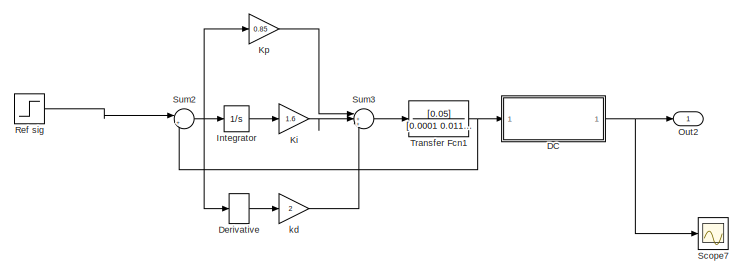
[diagram: root canvas - part 1/3, top left region]
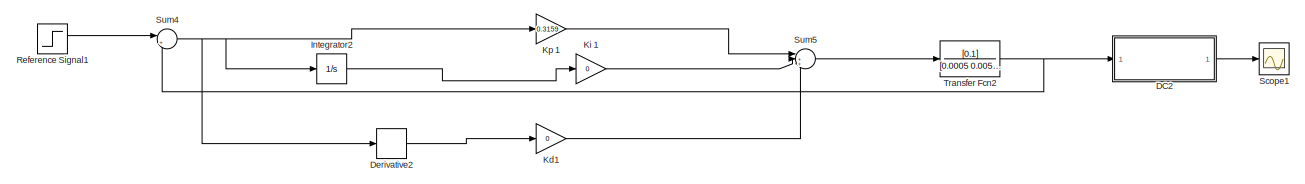
[diagram: root canvas - part 2/3, top right region]
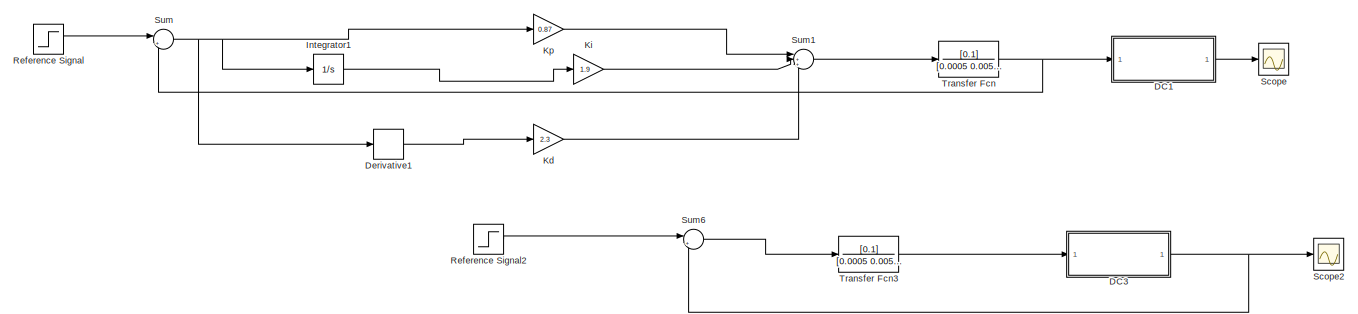
[diagram: root canvas - part 3/3, bottom left region]
MODEL slx_ba53cc7c0554
KIND model
CONFIG AbsTol = 1e-4
CONFIG EnableMultiTasking = off
CONFIG FixedStep = 0.001
CONFIG InitFcn = clear\nclc\n\nJ=0.02;\nb=0.1;\nKe=0.05;\nKt=0.05;\nR=1;\nL=0.01;
CONFIG MaxStep = 0.001
CONFIG MinStep = 1e-8
CONFIG RelTol = 1e-4
CONFIG SampleTimeConstraint = Unconstrained
CONFIG SolverName = ode23t
CONFIG StartTime = 0.0
CONFIG StopTime = 10.0
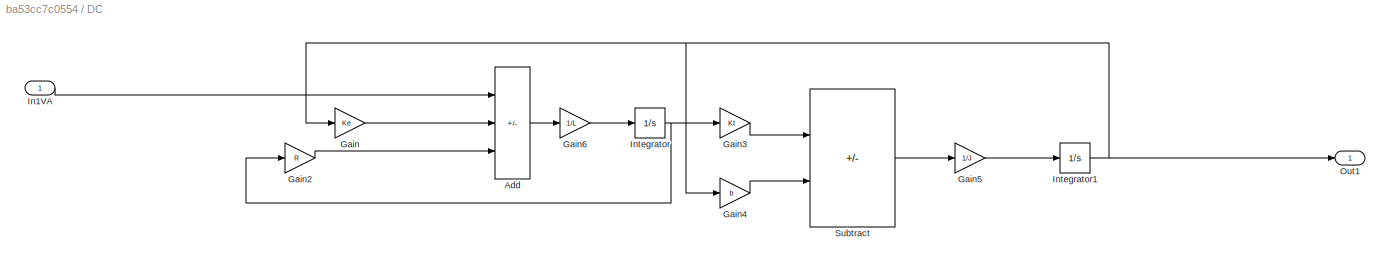
BLOCK [SubSystem] DC
BLOCK [Sum] DC/Add
  IconShape = rectangular
  Inputs = +--
BLOCK [Gain] DC/Gain
  Gain = Ke
BLOCK [Gain] DC/Gain2
  Gain = R
BLOCK [Gain] DC/Gain3
  Gain = Kt
BLOCK [Gain] DC/Gain4
  Gain = b
BLOCK [Gain] DC/Gain5
  Gain = 1/J
BLOCK [Gain] DC/Gain6
  Gain = 1/L
BLOCK [Inport] DC/In1VA
BLOCK [Integrator] DC/Integrator
BLOCK [Integrator] DC/Integrator1
BLOCK [Outport] DC/Out1
BLOCK [Sum] DC/Subtract
  IconShape = rectangular
  Inputs = +-
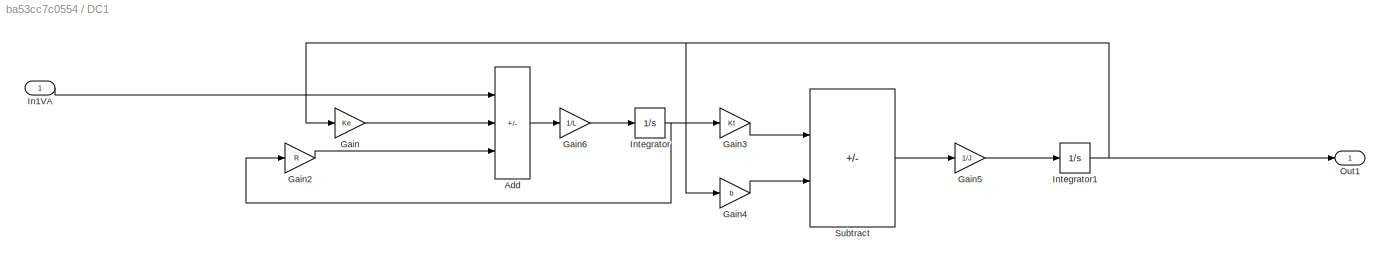
BLOCK [SubSystem] DC1
BLOCK [Sum] DC1/Add
  IconShape = rectangular
  Inputs = +--
BLOCK [Gain] DC1/Gain
  Gain = Ke
BLOCK [Gain] DC1/Gain2
  Gain = R
BLOCK [Gain] DC1/Gain3
  Gain = Kt
BLOCK [Gain] DC1/Gain4
  Gain = b
BLOCK [Gain] DC1/Gain5
  Gain = 1/J
BLOCK [Gain] DC1/Gain6
  Gain = 1/L
BLOCK [Inport] DC1/In1VA
BLOCK [Integrator] DC1/Integrator
BLOCK [Integrator] DC1/Integrator1
BLOCK [Outport] DC1/Out1
BLOCK [Sum] DC1/Subtract
  IconShape = rectangular
  Inputs = +-
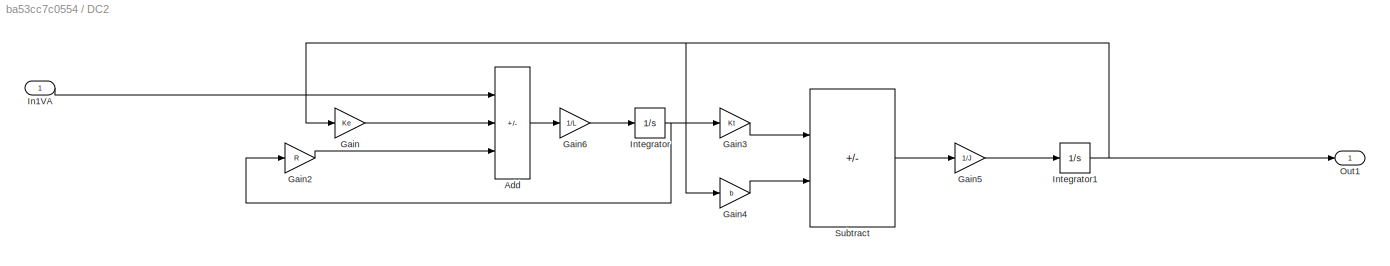
BLOCK [SubSystem] DC2
BLOCK [Sum] DC2/Add
  IconShape = rectangular
  Inputs = +--
BLOCK [Gain] DC2/Gain
  Gain = Ke
BLOCK [Gain] DC2/Gain2
  Gain = R
BLOCK [Gain] DC2/Gain3
  Gain = Kt
BLOCK [Gain] DC2/Gain4
  Gain = b
BLOCK [Gain] DC2/Gain5
  Gain = 1/J
BLOCK [Gain] DC2/Gain6
  Gain = 1/L
BLOCK [Inport] DC2/In1VA
BLOCK [Integrator] DC2/Integrator
BLOCK [Integrator] DC2/Integrator1
BLOCK [Outport] DC2/Out1
BLOCK [Sum] DC2/Subtract
  IconShape = rectangular
  Inputs = +-
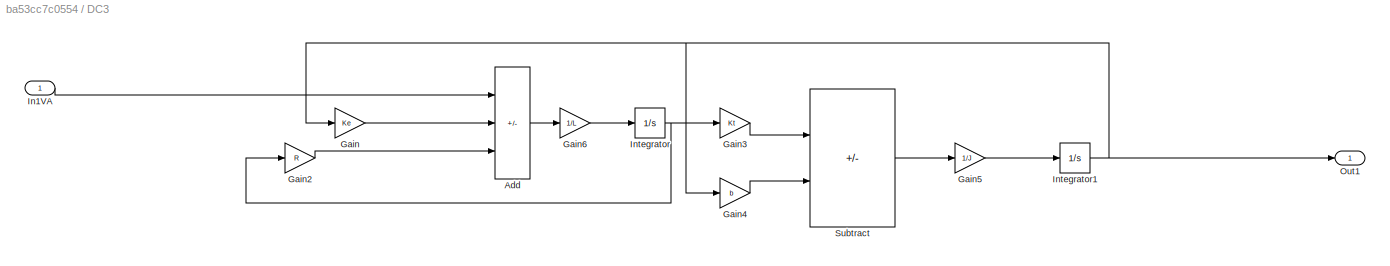
BLOCK [SubSystem] DC3
BLOCK [Sum] DC3/Add
  IconShape = rectangular
  Inputs = +--
BLOCK [Gain] DC3/Gain
  Gain = Ke
BLOCK [Gain] DC3/Gain2
  Gain = R
BLOCK [Gain] DC3/Gain3
  Gain = Kt
BLOCK [Gain] DC3/Gain4
  Gain = b
BLOCK [Gain] DC3/Gain5
  Gain = 1/J
BLOCK [Gain] DC3/Gain6
  Gain = 1/L
BLOCK [Inport] DC3/In1VA
BLOCK [Integrator] DC3/Integrator
BLOCK [Integrator] DC3/Integrator1
BLOCK [Outport] DC3/Out1
BLOCK [Sum] DC3/Subtract
  IconShape = rectangular
  Inputs = +-
BLOCK [Derivative] Derivative
BLOCK [Derivative] Derivative1
BLOCK [Derivative] Derivative2
BLOCK [Integrator] Integrator
BLOCK [Integrator] Integrator1
BLOCK [Integrator] Integrator2
BLOCK [Gain] Kd
  Gain = 2.3
BLOCK [Gain] Kd1
  Gain = 0
BLOCK [Gain] Ki
  Gain = 1.6
BLOCK [Gain] Ki 
  Gain = 1.9
BLOCK [Gain] Ki 1
  Gain = 0
BLOCK [Gain] Kp
  Gain = 0.85
BLOCK [Gain] Kp 
  Gain = 0.87
BLOCK [Gain] Kp 1
  Gain = 0.3159
BLOCK [Outport] Out2
BLOCK [Step] Ref sig
  SampleTime = 0
BLOCK [Step] Reference Signal
  SampleTime = 0
BLOCK [Step] Reference Signal1
  SampleTime = 0
BLOCK [Step] Reference Signal2
  SampleTime = 0
BLOCK [Scope] Scope
  Floating = off
  NumInputPorts = 1
  ScopeSpecificationString = Simulink.scopes.TimeScopeBlockCfg('CurrentConfiguration', extmgr.ConfigurationSet(extmgr.Configuration('Core','General UI',true),extmgr.Configuration('Core','Source UI',true),extmgr.Configuration('Sources','WiredSimulink',true,'DataLoggingVariableName','ScopeData1'),extmgr.Configuration('Visuals','Time Domain',true,'SerializedDisplays',{struct('MinYLimReal','-0.08784','MaxYLimReal','0.78794','YLab...<+1484ch>
BLOCK [Scope] Scope1
  Floating = off
  NumInputPorts = 1
  ScopeSpecificationString = Simulink.scopes.TimeScopeBlockCfg('CurrentConfiguration', extmgr.ConfigurationSet(extmgr.Configuration('Core','General UI',true),extmgr.Configuration('Core','Source UI',true),extmgr.Configuration('Sources','WiredSimulink',true,'DataLoggingVariableName','ScopeData2'),extmgr.Configuration('Visuals','Time Domain',true,'SerializedDisplays',{struct('MinYLimReal','-0.03049','MaxYLimReal','0.27439','YLab...<+1510ch>
BLOCK [Scope] Scope2
  Floating = off
  NumInputPorts = 1
  ScopeSpecificationString = Simulink.scopes.TimeScopeBlockCfg('CurrentConfiguration', extmgr.ConfigurationSet(extmgr.Configuration('Core','General UI',true),extmgr.Configuration('Core','Source UI',true),extmgr.Configuration('Sources','WiredSimulink',true,'DataLoggingVariableName','ScopeData1'),extmgr.Configuration('Visuals','Time Domain',true),extmgr.Configuration('Tools','Plot Navigation',true),extmgr.Configuration('Tools',...<+40ch>
BLOCK [Scope] Scope7
  Floating = off
  NumInputPorts = 1
  ScopeSpecificationString = Simulink.scopes.TimeScopeBlockCfg('CurrentConfiguration', extmgr.ConfigurationSet(extmgr.Configuration('Core','General UI',true),extmgr.Configuration('Core','Source UI',true),extmgr.Configuration('Sources','WiredSimulink',true,'DataLoggingVariableName','ScopeData1'),extmgr.Configuration('Visuals','Time Domain',true,'SerializedDisplays',{struct('MinYLimReal','-12950829291252666467520474742775534934...<+3677ch>
BLOCK [Sum] Sum
  Inputs = |+-
BLOCK [Sum] Sum1
  Inputs = |+++
BLOCK [Sum] Sum2
  Inputs = |+-
BLOCK [Sum] Sum3
  Inputs = |+++
BLOCK [Sum] Sum4
  Inputs = |+-
BLOCK [Sum] Sum5
  Inputs = |+++
BLOCK [Sum] Sum6
  Inputs = |+-
BLOCK [TransferFcn] Transfer Fcn
  Denominator = [0.0005 0.005 0.03159]
  Numerator = [0.1]
BLOCK [TransferFcn] Transfer Fcn1
  Denominator = [0.0001 0.011 0.1025 0]
  Numerator = [0.05]
BLOCK [TransferFcn] Transfer Fcn2
  Denominator = [0.0005 0.005 0.03159]
  Numerator = [0.1]
BLOCK [TransferFcn] Transfer Fcn3
  Denominator = [0.0005 0.005 0.03159]
  Numerator = [0.1]
BLOCK [Gain] kd
  Gain = 2
LINE DC/Add:1 -> DC/Gain6:1
LINE DC/Gain2:1 -> DC/Add:3
LINE DC/Gain3:1 -> DC/Subtract:1
LINE DC/Gain4:1 -> DC/Subtract:2
LINE DC/Gain5:1 -> DC/Integrator1:1
LINE DC/Gain6:1 -> DC/Integrator:1
LINE DC/Gain:1 -> DC/Add:2
LINE DC/In1VA:1 -> DC/Add:1
NET DC/Integrator1:1 -> DC/Gain4:1, DC/Gain:1, DC/Out1:1
NET DC/Integrator:1 -> DC/Gain2:1, DC/Gain3:1
LINE DC/Subtract:1 -> DC/Gain5:1
LINE DC1/Add:1 -> DC1/Gain6:1
LINE DC1/Gain2:1 -> DC1/Add:3
LINE DC1/Gain3:1 -> DC1/Subtract:1
LINE DC1/Gain4:1 -> DC1/Subtract:2
LINE DC1/Gain5:1 -> DC1/Integrator1:1
LINE DC1/Gain6:1 -> DC1/Integrator:1
LINE DC1/Gain:1 -> DC1/Add:2
LINE DC1/In1VA:1 -> DC1/Add:1
NET DC1/Integrator1:1 -> DC1/Gain4:1, DC1/Gain:1, DC1/Out1:1
NET DC1/Integrator:1 -> DC1/Gain2:1, DC1/Gain3:1
LINE DC1/Subtract:1 -> DC1/Gain5:1
LINE DC1:1 -> Scope:1
LINE DC2/Add:1 -> DC2/Gain6:1
LINE DC2/Gain2:1 -> DC2/Add:3
LINE DC2/Gain3:1 -> DC2/Subtract:1
LINE DC2/Gain4:1 -> DC2/Subtract:2
LINE DC2/Gain5:1 -> DC2/Integrator1:1
LINE DC2/Gain6:1 -> DC2/Integrator:1
LINE DC2/Gain:1 -> DC2/Add:2
LINE DC2/In1VA:1 -> DC2/Add:1
NET DC2/Integrator1:1 -> DC2/Gain4:1, DC2/Gain:1, DC2/Out1:1
NET DC2/Integrator:1 -> DC2/Gain2:1, DC2/Gain3:1
LINE DC2/Subtract:1 -> DC2/Gain5:1
LINE DC2:1 -> Scope1:1
LINE DC3/Add:1 -> DC3/Gain6:1
LINE DC3/Gain2:1 -> DC3/Add:3
LINE DC3/Gain3:1 -> DC3/Subtract:1
LINE DC3/Gain4:1 -> DC3/Subtract:2
LINE DC3/Gain5:1 -> DC3/Integrator1:1
LINE DC3/Gain6:1 -> DC3/Integrator:1
LINE DC3/Gain:1 -> DC3/Add:2
LINE DC3/In1VA:1 -> DC3/Add:1
NET DC3/Integrator1:1 -> DC3/Gain4:1, DC3/Gain:1, DC3/Out1:1
NET DC3/Integrator:1 -> DC3/Gain2:1, DC3/Gain3:1
LINE DC3/Subtract:1 -> DC3/Gain5:1
NET DC3:1 -> Scope2:1, Sum6:2
NET DC:1 -> Out2:1, Scope7:1
LINE Derivative1:1 -> Kd:1
LINE Derivative2:1 -> Kd1:1
LINE Derivative:1 -> kd:1
LINE Integrator1:1 -> Ki :1
LINE Integrator2:1 -> Ki 1:1
LINE Integrator:1 -> Ki:1
LINE Kd1:1 -> Sum5:3
LINE Kd:1 -> Sum1:3
LINE Ki 1:1 -> Sum5:2
LINE Ki :1 -> Sum1:2
LINE Ki:1 -> Sum3:2
LINE Kp 1:1 -> Sum5:1
LINE Kp :1 -> Sum1:1
LINE Kp:1 -> Sum3:1
LINE Ref sig:1 -> Sum2:1
LINE Reference Signal1:1 -> Sum4:1
LINE Reference Signal2:1 -> Sum6:1
LINE Reference Signal:1 -> Sum:1
LINE Sum1:1 -> Transfer Fcn:1
NET Sum2:1 -> Derivative:1, Integrator:1, Kp:1
LINE Sum3:1 -> Transfer Fcn1:1
NET Sum4:1 -> Derivative2:1, Integrator2:1, Kp 1:1
LINE Sum5:1 -> Transfer Fcn2:1
LINE Sum6:1 -> Transfer Fcn3:1
NET Sum:1 -> Derivative1:1, Integrator1:1, Kp :1
NET Transfer Fcn1:1 -> DC:1, Sum2:2
NET Transfer Fcn2:1 -> DC2:1, Sum4:2
LINE Transfer Fcn3:1 -> DC3:1
NET Transfer Fcn:1 -> DC1:1, Sum:2
LINE kd:1 -> Sum3:3
note: NET lines group one-source signal fan-out (src -> all destinations, sorted); 1:1 wires keep LINE
